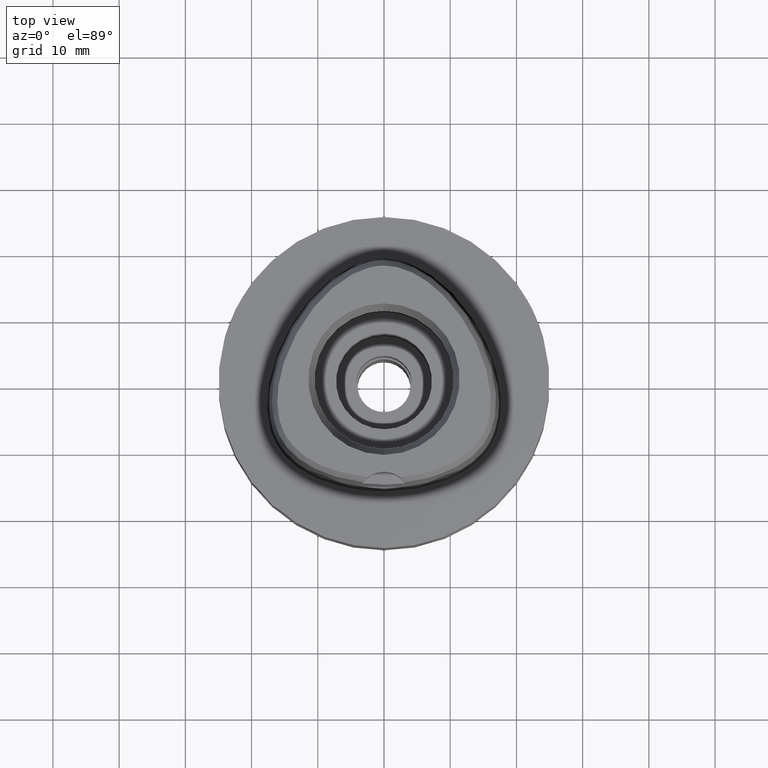
[diagram: clean part render]
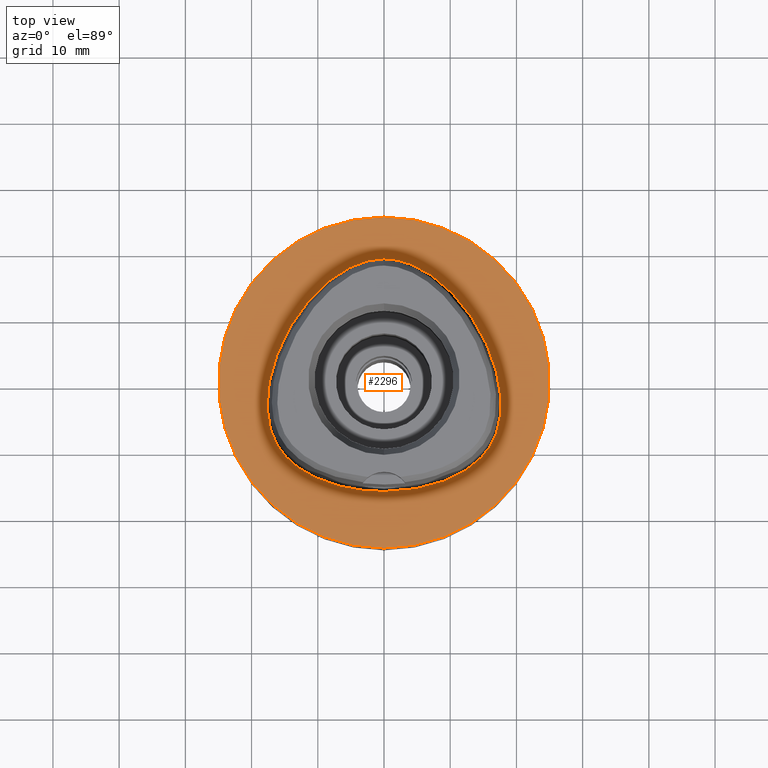
[diagram: same view with one face highlighted and labeled with its STEP entity id]
A machine part, top view. The second image highlights one B-rep face of the part: STEP entity #2296.
In plain terms, the highlighted planar face has unit normal (0, 0, -1).
Its self-contained STEP definition (entity closure, byte-faithful):
#290=CARTESIAN_POINT('',(0.E0,1.258324586124E-14,0.E0));
#291=DIRECTION('',(0.E0,0.E0,-1.E0));
#292=DIRECTION('',(0.E0,-1.E0,0.E0));
#293=AXIS2_PLACEMENT_3D('',#290,#291,#292);
#298=CARTESIAN_POINT('',(0.E0,1.258324586124E-14,0.E0));
#299=DIRECTION('',(0.E0,0.E0,-1.E0));
#300=DIRECTION('',(0.E0,1.E0,0.E0));
#301=AXIS2_PLACEMENT_3D('',#298,#299,#300);
#306=CARTESIAN_POINT('',(-1.921547431258E-14,-1.6455E1,1.714184350021E-13));
#307=CARTESIAN_POINT('',(7.106809676695E-1,-1.6455E1,1.714184350021E-13));
#308=CARTESIAN_POINT('',(2.108869523122E0,-1.640239052460E1,
-7.955557254887E-14));
#309=CARTESIAN_POINT('',(4.163967873521E0,-1.617110171219E1,
2.131685141787E-14));
#310=CARTESIAN_POINT('',(6.094894941206E0,-1.580320336173E1,0.E0));
#311=CARTESIAN_POINT('',(7.866905036453E0,-1.532154490771E1,0.E0));
#312=CARTESIAN_POINT('',(9.458019676574E0,-1.475043793634E1,0.E0));
#313=CARTESIAN_POINT('',(1.086323696445E1,-1.411277967449E1,0.E0));
#314=CARTESIAN_POINT('',(1.208951700063E1,-1.342706004670E1,0.E0));
#315=CARTESIAN_POINT('',(1.314969832859E1,-1.270741788929E1,0.E0));
#316=CARTESIAN_POINT('',(1.405983291868E1,-1.196325052792E1,0.E0));
#317=CARTESIAN_POINT('',(1.483622699126E1,-1.119981582545E1,0.E0));
#318=CARTESIAN_POINT('',(1.549237677848E1,-1.042065963449E1,0.E0));
#319=CARTESIAN_POINT('',(1.604228013396E1,-9.624969966992E0,0.E0));
#320=CARTESIAN_POINT('',(1.650365857539E1,-8.794050417389E0,0.E0));
#321=CARTESIAN_POINT('',(1.689418926024E1,-7.896692571822E0,0.E0));
#322=CARTESIAN_POINT('',(1.721763472612E1,-6.906405258078E0,0.E0));
#323=CARTESIAN_POINT('',(1.746357701534E1,-5.818854139798E0,0.E0));
#324=CARTESIAN_POINT('',(1.762243881246E1,-4.620160898172E0,0.E0));
#325=CARTESIAN_POINT('',(1.767989228129E1,-3.300170041549E0,0.E0));
#326=CARTESIAN_POINT('',(1.761881217381E1,-1.850980070445E0,0.E0));
#327=CARTESIAN_POINT('',(1.741991723275E1,-2.705997383287E-1,0.E0));
#328=CARTESIAN_POINT('',(1.706411429793E1,1.433481165217E0,0.E0));
#329=CARTESIAN_POINT('',(1.653577870335E1,3.241205917968E0,0.E0));
#330=CARTESIAN_POINT('',(1.582754650236E1,5.116457116919E0,0.E0));
#331=CARTESIAN_POINT('',(1.494446068132E1,7.008639207327E0,0.E0));
#332=CARTESIAN_POINT('',(1.390681529921E1,8.857221633256E0,0.E0));
#333=CARTESIAN_POINT('',(1.274270578811E1,1.061000103207E1,0.E0));
#334=CARTESIAN_POINT('',(1.149181340574E1,1.221679849134E1,0.E0));
#335=CARTESIAN_POINT('',(1.019666313996E1,1.364151125529E1,0.E0));
#336=CARTESIAN_POINT('',(8.894808308084E0,1.486684244588E1,0.E0));
#337=CARTESIAN_POINT('',(7.614453659112E0,1.589216606407E1,0.E0));
#338=CARTESIAN_POINT('',(6.374738616167E0,1.672763014157E1,0.E0));
#339=CARTESIAN_POINT('',(5.185678981242E0,1.739002459121E1,0.E0));
#340=CARTESIAN_POINT('',(4.050737881238E0,1.789806528984E1,0.E0));
#341=CARTESIAN_POINT('',(2.968943253240E0,1.826978059620E1,0.E0));
#342=CARTESIAN_POINT('',(1.935939777428E0,1.852100514111E1,2.116038057413E-14));
#343=CARTESIAN_POINT('',(9.476322076213E-1,1.866451849940E1,
-7.897161541013E-14));
#344=CARTESIAN_POINT('',(3.116770940234E-1,1.869499999997E1,
1.701601822409E-13));
#345=CARTESIAN_POINT('',(1.063348678968E-10,1.869499999997E1,
1.701601822409E-13));
#350=CARTESIAN_POINT('',(1.063348678968E-10,1.869499999997E1,
1.701601822409E-13));
#351=CARTESIAN_POINT('',(-3.116910717946E-1,1.869499999997E1,
1.701601822409E-13));
#352=CARTESIAN_POINT('',(-9.476467512705E-1,1.866451881344E1,
-7.897161541013E-14));
#353=CARTESIAN_POINT('',(-1.935976791846E0,1.852099342545E1,
2.116038057413E-14));
#354=CARTESIAN_POINT('',(-2.968712838402E0,1.826984038497E1,0.E0));
#355=CARTESIAN_POINT('',(-4.050379387861E0,1.789820404388E1,0.E0));
#356=CARTESIAN_POINT('',(-5.185240336425E0,1.739024436282E1,0.E0));
#357=CARTESIAN_POINT('',(-6.374330198489E0,1.672788214023E1,0.E0));
#358=CARTESIAN_POINT('',(-7.614039598423E0,1.589247160888E1,0.E0));
#359=CARTESIAN_POINT('',(-8.894410011235E0,1.486718678707E1,0.E0));
#360=CARTESIAN_POINT('',(-1.019617484567E1,1.364200336157E1,0.E0));
#361=CARTESIAN_POINT('',(-1.149129753459E1,1.221741145577E1,0.E0));
#362=CARTESIAN_POINT('',(-1.274216774103E1,1.061073583342E1,0.E0));
#363=CARTESIAN_POINT('',(-1.390599104162E1,8.858527479818E0,0.E0));
#364=CARTESIAN_POINT('',(-1.494335476583E1,7.010762421335E0,0.E0));
#365=CARTESIAN_POINT('',(-1.582650081314E1,5.118914211028E0,0.E0));
#366=CARTESIAN_POINT('',(-1.653478652420E1,3.244122764273E0,0.E0));
#367=CARTESIAN_POINT('',(-1.706324856531E1,1.436867138574E0,0.E0));
#368=CARTESIAN_POINT('',(-1.741926282007E1,-2.667705314036E-1,0.E0));
#369=CARTESIAN_POINT('',(-1.761845962397E1,-1.846981053611E0,0.E0));
#370=CARTESIAN_POINT('',(-1.767988887167E1,-3.295924478685E0,0.E0));
#371=CARTESIAN_POINT('',(-1.762276940337E1,-4.616236231059E0,0.E0));
#372=CARTESIAN_POINT('',(-1.746431522305E1,-5.814804362158E0,0.E0));
#373=CARTESIAN_POINT('',(-1.721844778407E1,-6.903376767553E0,0.E0));
#374=CARTESIAN_POINT('',(-1.689576378439E1,-7.892529863846E0,0.E0));
#375=CARTESIAN_POINT('',(-1.650475676181E1,-8.792023266059E0,0.E0));
#376=CARTESIAN_POINT('',(-1.604248132324E1,-9.624720114324E0,0.E0));
#377=CARTESIAN_POINT('',(-1.549240494377E1,-1.042058101062E1,0.E0));
#378=CARTESIAN_POINT('',(-1.483700391255E1,-1.119895548827E1,0.E0));
#379=CARTESIAN_POINT('',(-1.406062408184E1,-1.196254156855E1,0.E0));
#380=CARTESIAN_POINT('',(-1.315092501812E1,-1.270649370441E1,0.E0));
#381=CARTESIAN_POINT('',(-1.209083980797E1,-1.342624920654E1,0.E0));
#382=CARTESIAN_POINT('',(-1.086461460825E1,-1.411209363958E1,0.E0));
#383=CARTESIAN_POINT('',(-9.459102000633E0,-1.475001163526E1,0.E0));
#384=CARTESIAN_POINT('',(-7.867777795801E0,-1.532128149902E1,0.E0));
#385=CARTESIAN_POINT('',(-6.095328942975E0,-1.580311558252E1,0.E0));
#386=CARTESIAN_POINT('',(-4.164108042197E0,-1.617108560899E1,
2.131685141787E-14));
#387=CARTESIAN_POINT('',(-2.108877025577E0,-1.640239194094E1,
-7.955557254887E-14));
#388=CARTESIAN_POINT('',(-7.106697475805E-1,-1.6455E1,1.714184350021E-13));
#389=CARTESIAN_POINT('',(-1.921547431258E-14,-1.6455E1,1.714184350021E-13));
#1513=VERTEX_POINT('',#350);
#1514=VERTEX_POINT('',#389);
#1519=CARTESIAN_POINT('',(0.E0,-2.5E1,0.E0));
#1520=CARTESIAN_POINT('',(0.E0,2.5E1,0.E0));
#1521=VERTEX_POINT('',#1519);
#1522=VERTEX_POINT('',#1520);
#2280=CARTESIAN_POINT('',(0.E0,1.224646799147E-14,0.E0));
#2281=DIRECTION('',(0.E0,0.E0,-1.E0));
#2282=DIRECTION('',(0.E0,-1.E0,0.E0));
#2283=AXIS2_PLACEMENT_3D('',#2280,#2281,#2282);
#2284=PLANE('',#2283);
#2286=ORIENTED_EDGE('',*,*,#2285,.T.);
#2288=ORIENTED_EDGE('',*,*,#2287,.T.);
#2289=EDGE_LOOP('',(#2286,#2288));
#2290=FACE_OUTER_BOUND('',#2289,.F.);
#2292=ORIENTED_EDGE('',*,*,#2291,.T.);
#2293=ORIENTED_EDGE('',*,*,#2263,.T.);
#2294=EDGE_LOOP('',(#2292,#2293));
#2295=FACE_BOUND('',#2294,.F.);
#294=CIRCLE('',#293,2.5E1);
#302=CIRCLE('',#301,2.5E1);
#346=B_SPLINE_CURVE_WITH_KNOTS('',3,(#306,#307,#308,#309,#310,#311,#312,#313,
#314,#315,#316,#317,#318,#319,#320,#321,#322,#323,#324,#325,#326,#327,#328,#329,
#330,#331,#332,#333,#334,#335,#336,#337,#338,#339,#340,#341,#342,#343,#344,
#345),.UNSPECIFIED.,.F.,.F.,(4,1,1,1,1,1,1,1,1,1,1,1,1,1,1,1,1,1,1,1,1,1,1,1,1,
1,1,1,1,1,1,1,1,1,1,1,1,4),(0.E0,2.702702702703E-2,5.405405405405E-2,
8.108108108108E-2,1.081081081081E-1,1.351351351351E-1,1.621621621622E-1,
1.891891891892E-1,2.162162162162E-1,2.432432432432E-1,2.702702702703E-1,
2.972972972973E-1,3.243243243243E-1,3.513513513514E-1,3.783783783784E-1,
4.054054054054E-1,4.324324324324E-1,4.594594594595E-1,4.864864864865E-1,
5.135135135135E-1,5.405405405405E-1,5.675675675676E-1,5.945945945946E-1,
6.216216216216E-1,6.486486486486E-1,6.756756756757E-1,7.027027027027E-1,
7.297297297297E-1,7.567567567568E-1,7.837837837838E-1,8.108108108108E-1,
8.378378378378E-1,8.648648648649E-1,8.918918918919E-1,9.189189189189E-1,
9.459459459459E-1,9.729729729730E-1,1.E0),.UNSPECIFIED.);
#390=B_SPLINE_CURVE_WITH_KNOTS('',3,(#350,#351,#352,#353,#354,#355,#356,#357,
#358,#359,#360,#361,#362,#363,#364,#365,#366,#367,#368,#369,#370,#371,#372,#373,
#374,#375,#376,#377,#378,#379,#380,#381,#382,#383,#384,#385,#386,#387,#388,
#389),.UNSPECIFIED.,.F.,.F.,(4,1,1,1,1,1,1,1,1,1,1,1,1,1,1,1,1,1,1,1,1,1,1,1,1,
1,1,1,1,1,1,1,1,1,1,1,1,4),(0.E0,2.702702702703E-2,5.405405405405E-2,
8.108108108108E-2,1.081081081081E-1,1.351351351351E-1,1.621621621622E-1,
1.891891891892E-1,2.162162162162E-1,2.432432432432E-1,2.702702702703E-1,
2.972972972973E-1,3.243243243243E-1,3.513513513514E-1,3.783783783784E-1,
4.054054054054E-1,4.324324324324E-1,4.594594594595E-1,4.864864864865E-1,
5.135135135135E-1,5.405405405405E-1,5.675675675676E-1,5.945945945946E-1,
6.216216216216E-1,6.486486486486E-1,6.756756756757E-1,7.027027027027E-1,
7.297297297297E-1,7.567567567568E-1,7.837837837838E-1,8.108108108108E-1,
8.378378378378E-1,8.648648648649E-1,8.918918918919E-1,9.189189189189E-1,
9.459459459459E-1,9.729729729730E-1,1.E0),.UNSPECIFIED.);
#2263=EDGE_CURVE('',#1513,#1514,#390,.T.);
#2285=EDGE_CURVE('',#1521,#1522,#294,.T.);
#2287=EDGE_CURVE('',#1522,#1521,#302,.T.);
#2291=EDGE_CURVE('',#1514,#1513,#346,.T.);
#2296=ADVANCED_FACE('',(#2290,#2295),#2284,.F.);